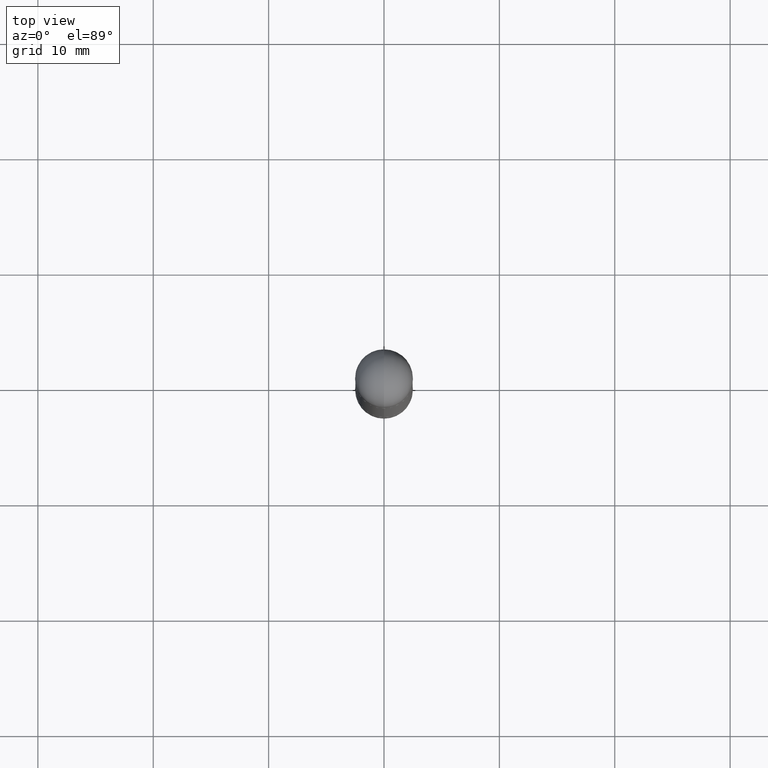
[diagram: clean part render]
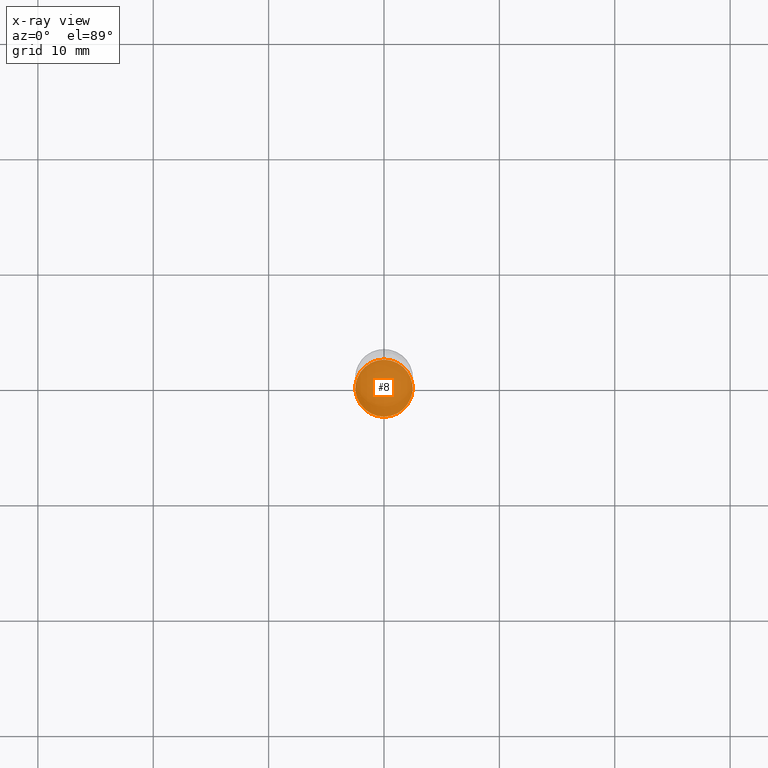
[diagram: x-ray — body ghosted, one internal face saturated and labeled with its STEP entity id]
A machine part, top view, then the same camera in x-ray: the body is ghosted and one INTERNAL B-rep face — a face not visible from any outside direction — is saturated and labeled: STEP entity #8.
In plain terms, the highlighted planar face has unit normal (-0, 0, 1).
Its self-contained STEP definition (entity closure, byte-faithful):
#8 = ADVANCED_FACE ( 'NONE', ( #484 ), #189, .F. ) ;
#30 = DIRECTION ( 'NONE',  ( -2.445773315156716163E-29, 3.491045264664268947E-15, 1.000000000000000000 ) ) ;
#114 = VERTEX_POINT ( 'NONE', #275 ) ;
#151 = AXIS2_PLACEMENT_3D ( 'NONE', #661, #30, #617 ) ;
#178 = CIRCLE ( 'NONE', #301, 0.09744999999999999496 ) ;
#189 = PLANE ( 'NONE',  #151 ) ;
#249 = DIRECTION ( 'NONE',  ( -2.445773315156716163E-29, 3.491045264664269341E-15, 1.000000000000000000 ) ) ;
#275 = CARTESIAN_POINT ( 'NONE',  ( 6.959766096770698684E-16, 0.09744999999999269524, -2.086600000000000676 ) ) ;
#301 = AXIS2_PLACEMENT_3D ( 'NONE', #631, #249, #564 ) ;
#365 = ORIENTED_EDGE ( 'NONE', *, *, #737, .F. ) ;
#369 = CARTESIAN_POINT ( 'NONE',  ( -6.804897129404755657E-16, -0.09745000000000728080, -2.086600000000000232 ) ) ;
#393 = AXIS2_PLACEMENT_3D ( 'NONE', #784, #721, #663 ) ;
#445 = EDGE_CURVE ( 'NONE', #114, #630, #465, .T. ) ;
#465 = CIRCLE ( 'NONE', #393, 0.09744999999999999496 ) ;
#484 = FACE_OUTER_BOUND ( 'NONE', #760, .T. ) ;
#564 = DIRECTION ( 'NONE',  ( -6.982962677686266711E-15, -1.000000000000000000, 2.803332984776052637E-15 ) ) ;
#617 = DIRECTION ( 'NONE',  ( -6.982962677686265922E-15, -1.000000000000000000, 3.491045264664268947E-15 ) ) ;
#630 = VERTEX_POINT ( 'NONE', #369 ) ;
#631 = CARTESIAN_POINT ( 'NONE',  ( 5.103350599406005288E-29, -7.284415049248465084E-15, -2.086600000000000232 ) ) ;
#634 = ORIENTED_EDGE ( 'NONE', *, *, #445, .F. ) ;
#661 = CARTESIAN_POINT ( 'NONE',  ( 5.103350599406005288E-29, -7.284415049248465084E-15, -2.086600000000000232 ) ) ;
#663 = DIRECTION ( 'NONE',  ( -6.982962677686266711E-15, -1.000000000000000000, 2.803332984776052637E-15 ) ) ;
#721 = DIRECTION ( 'NONE',  ( -2.445773315156716163E-29, 3.491045264664269341E-15, 1.000000000000000000 ) ) ;
#737 = EDGE_CURVE ( 'NONE', #630, #114, #178, .T. ) ;
#760 = EDGE_LOOP ( 'NONE', ( #365, #634 ) ) ;
#784 = CARTESIAN_POINT ( 'NONE',  ( 5.103350599406005288E-29, -7.284415049248465084E-15, -2.086600000000000232 ) ) ;